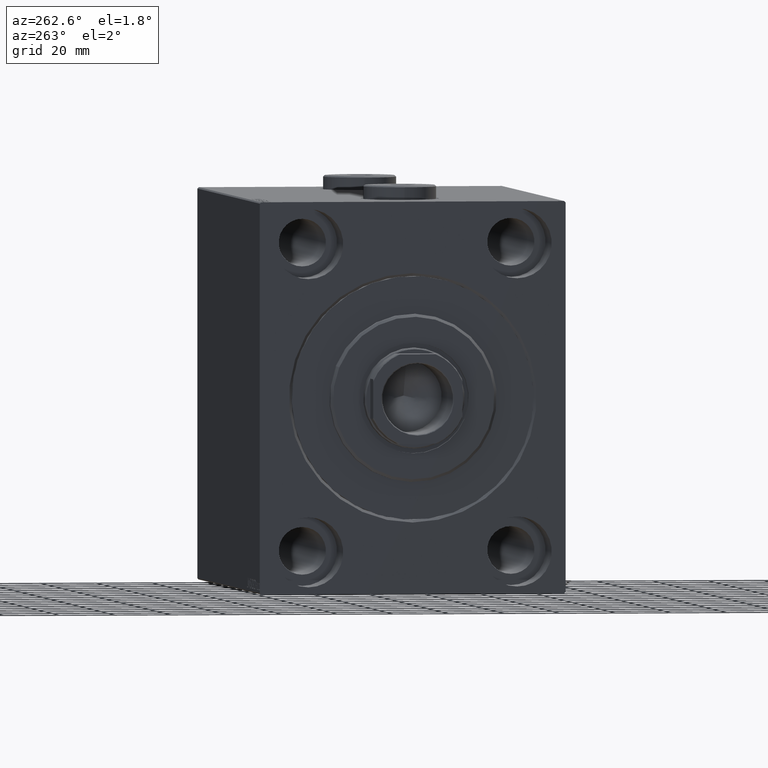
[diagram: clean part render]
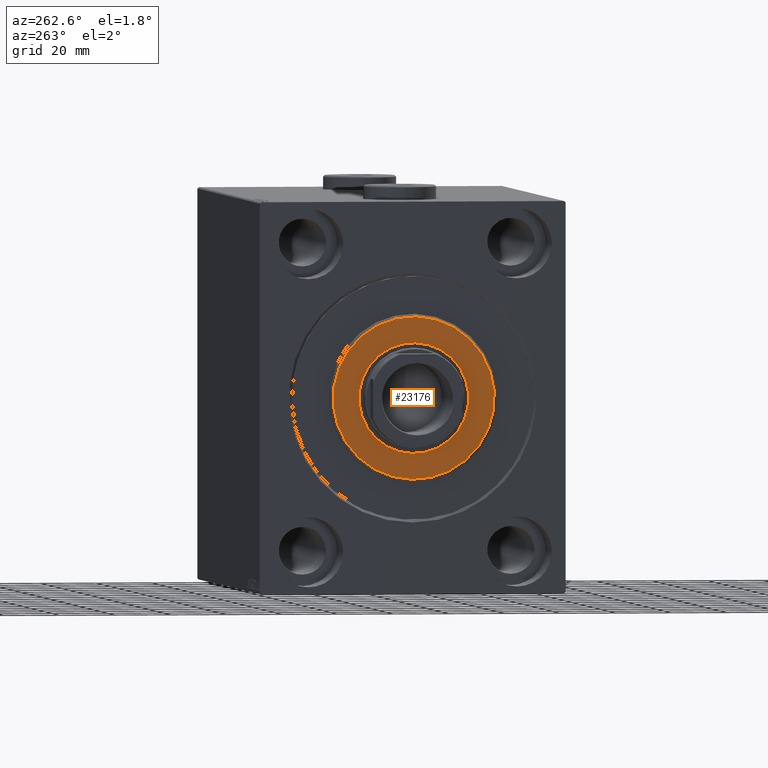
[diagram: same view with one face highlighted and labeled with its STEP entity id]
A machine part, auxiliary view. The second image highlights one B-rep face of the part: STEP entity #23176.
In plain terms, the highlighted planar face has unit normal (-1, 0, 0).
Its self-contained STEP definition (entity closure, byte-faithful):
#2963 = EDGE_CURVE ( 'NONE', #12776, #4066, #32736, .T. ) ;
#4066 = VERTEX_POINT ( 'NONE', #33880 ) ;
#4787 = CIRCLE ( 'NONE', #19452, 19.75000000000000000 ) ;
#4924 = AXIS2_PLACEMENT_3D ( 'NONE', #39380, #24496, #25413 ) ;
#5123 = PLANE ( 'NONE',  #6810 ) ;
#6443 = CARTESIAN_POINT ( 'NONE',  ( 3.000000000000000000, 0.000000000000000000, 0.000000000000000000 ) ) ;
#6810 = AXIS2_PLACEMENT_3D ( 'NONE', #18437, #28987, #43384 ) ;
#7655 = FACE_BOUND ( 'NONE', #32974, .T. ) ;
#7789 = AXIS2_PLACEMENT_3D ( 'NONE', #6443, #41280, #42173 ) ;
#11303 = EDGE_LOOP ( 'NONE', ( #13466, #42608 ) ) ;
#12401 = CARTESIAN_POINT ( 'NONE',  ( 3.000000000000000000, 0.000000000000000000, 19.75000000000000000 ) ) ;
#12431 = VERTEX_POINT ( 'NONE', #12401 ) ;
#12776 = VERTEX_POINT ( 'NONE', #22451 ) ;
#13466 = ORIENTED_EDGE ( 'NONE', *, *, #43036, .T. ) ;
#15149 = CIRCLE ( 'NONE', #40781, 28.99999999999999289 ) ;
#18437 = CARTESIAN_POINT ( 'NONE',  ( 3.000000000000000000, 0.000000000000000000, 0.000000000000000000 ) ) ;
#19452 = AXIS2_PLACEMENT_3D ( 'NONE', #41944, #34185, #31195 ) ;
#22451 = CARTESIAN_POINT ( 'NONE',  ( 3.000000000000000000, 3.612708057484691604E-15, -28.99999999999999289 ) ) ;
#23176 = ADVANCED_FACE ( 'NONE', ( #29434, #7655 ), #5123, .T. ) ;
#24496 = DIRECTION ( 'NONE',  ( 1.000000000000000000, -0.000000000000000000, 0.000000000000000000 ) ) ;
#25413 = DIRECTION ( 'NONE',  ( 0.000000000000000000, 0.000000000000000000, -1.000000000000000000 ) ) ;
#27564 = CIRCLE ( 'NONE', #7789, 19.75000000000000000 ) ;
#28987 = DIRECTION ( 'NONE',  ( 1.000000000000000000, -0.000000000000000000, 0.000000000000000000 ) ) ;
#29434 = FACE_OUTER_BOUND ( 'NONE', #11303, .T. ) ;
#31185 = DIRECTION ( 'NONE',  ( 1.000000000000000000, -0.000000000000000000, 0.000000000000000000 ) ) ;
#31195 = DIRECTION ( 'NONE',  ( 0.000000000000000000, 0.000000000000000000, -1.000000000000000000 ) ) ;
#32624 = ORIENTED_EDGE ( 'NONE', *, *, #42062, .T. ) ;
#32736 = CIRCLE ( 'NONE', #4924, 28.99999999999999289 ) ;
#32974 = EDGE_LOOP ( 'NONE', ( #32975, #32624 ) ) ;
#32975 = ORIENTED_EDGE ( 'NONE', *, *, #38522, .T. ) ;
#33880 = CARTESIAN_POINT ( 'NONE',  ( 3.000000000000000000, 0.000000000000000000, 28.99999999999999289 ) ) ;
#34185 = DIRECTION ( 'NONE',  ( -1.000000000000000000, 0.000000000000000000, -0.000000000000000000 ) ) ;
#34220 = CARTESIAN_POINT ( 'NONE',  ( 3.000000000000000000, 2.418677428316022331E-15, -19.75000000000000000 ) ) ;
#38264 = DIRECTION ( 'NONE',  ( 0.000000000000000000, 0.000000000000000000, -1.000000000000000000 ) ) ;
#38522 = EDGE_CURVE ( 'NONE', #12431, #45248, #4787, .T. ) ;
#39380 = CARTESIAN_POINT ( 'NONE',  ( 3.000000000000000000, 0.000000000000000000, 0.000000000000000000 ) ) ;
#40781 = AXIS2_PLACEMENT_3D ( 'NONE', #41934, #31185, #38264 ) ;
#41280 = DIRECTION ( 'NONE',  ( -1.000000000000000000, 0.000000000000000000, -0.000000000000000000 ) ) ;
#41934 = CARTESIAN_POINT ( 'NONE',  ( 3.000000000000000000, 0.000000000000000000, 0.000000000000000000 ) ) ;
#41944 = CARTESIAN_POINT ( 'NONE',  ( 3.000000000000000000, 0.000000000000000000, 0.000000000000000000 ) ) ;
#42062 = EDGE_CURVE ( 'NONE', #45248, #12431, #27564, .T. ) ;
#42173 = DIRECTION ( 'NONE',  ( 0.000000000000000000, 0.000000000000000000, -1.000000000000000000 ) ) ;
#42608 = ORIENTED_EDGE ( 'NONE', *, *, #2963, .T. ) ;
#43036 = EDGE_CURVE ( 'NONE', #4066, #12776, #15149, .T. ) ;
#43384 = DIRECTION ( 'NONE',  ( 0.000000000000000000, 0.000000000000000000, -1.000000000000000000 ) ) ;
#45248 = VERTEX_POINT ( 'NONE', #34220 ) ;